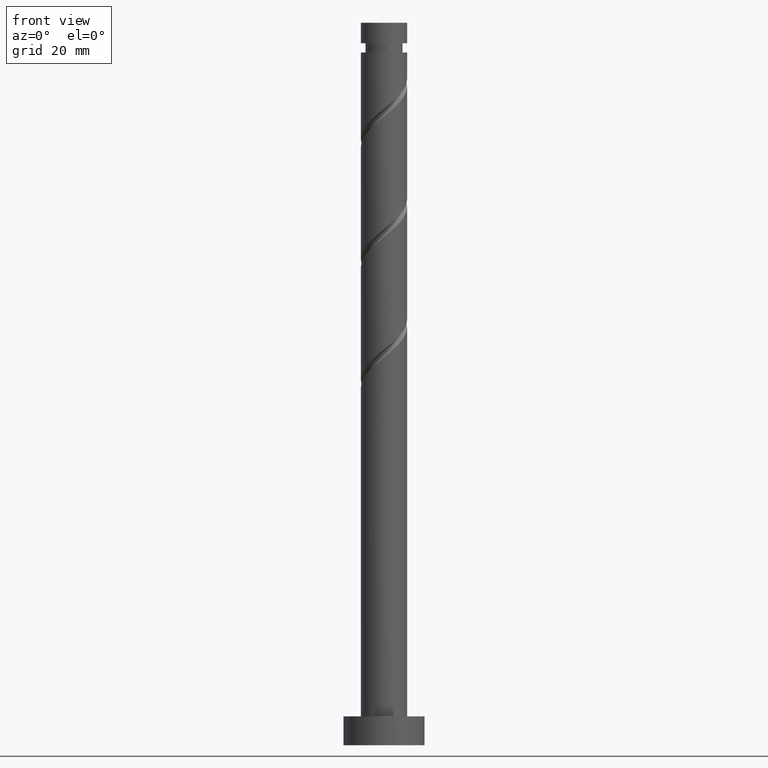
[diagram: clean part render]
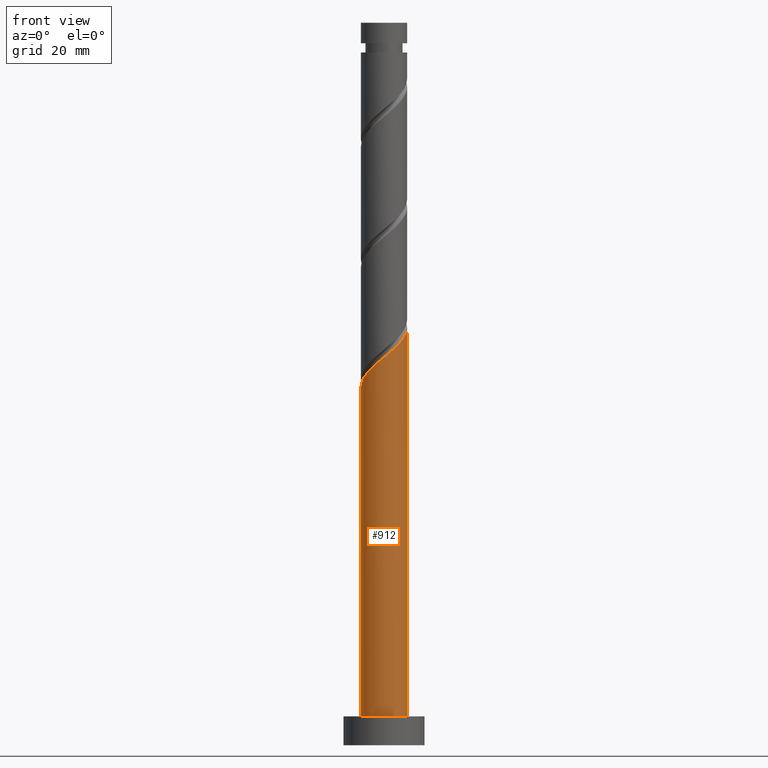
[diagram: same view with one face highlighted and labeled with its STEP entity id]
A machine part, front view. The second image highlights one B-rep face of the part: STEP entity #912.
In plain terms, the highlighted cylindrical surface (edge-blend (fillet) strip) has radius 4 mm, axis along (-0, -0, -1).
Its self-contained STEP definition (entity closure, byte-faithful):
#39 = EDGE_CURVE ( 'NONE', #593, #1418, #1449, .T. ) ;
#51 = VERTEX_POINT ( 'NONE', #223 ) ;
#53 = ORIENTED_EDGE ( 'NONE', *, *, #80, .T. ) ;
#65 = CARTESIAN_POINT ( 'NONE',  ( -2.236544262273469474, -3.376276034017707595, 65.15939096344953896 ) ) ;
#79 = CARTESIAN_POINT ( 'NONE',  ( -3.920000000000007034, -0.7959899496852957945, 62.55522429678288177 ) ) ;
#80 = EDGE_CURVE ( 'NONE', #51, #593, #476, .T. ) ;
#83 = DIRECTION ( 'NONE',  ( -0.000000000000000000, -0.000000000000000000, -1.000000000000000000 ) ) ;
#94 = CARTESIAN_POINT ( 'NONE',  ( 4.000000000000000000, 4.898587196589412829E-16, 5.000000000000000000 ) ) ;
#97 = CARTESIAN_POINT ( 'NONE',  ( 0.000000000000000000, 0.000000000000000000, 5.000000000000000000 ) ) ;
#111 = CARTESIAN_POINT ( 'NONE',  ( 0.7959899496852953504, -3.920000000000007034, 67.76355763011622457 ) ) ;
#136 = FACE_OUTER_BOUND ( 'NONE', #1144, .T. ) ;
#179 = CARTESIAN_POINT ( 'NONE',  ( -3.482167122072591603, -1.968378046503447498, 63.59689096344956027 ) ) ;
#186 = CARTESIAN_POINT ( 'NONE',  ( -3.170406666830039466, -2.519899137249416388, 64.11772429678289598 ) ) ;
#204 = CARTESIAN_POINT ( 'NONE',  ( 3.376276034017707595, -2.236544262273469919, 70.36772429678286755 ) ) ;
#217 = ORIENTED_EDGE ( 'NONE', *, *, #741, .F. ) ;
#223 = CARTESIAN_POINT ( 'NONE',  ( -4.000000000000005329, -2.998620556641140804E-15, 61.89042185531262419 ) ) ;
#237 = CARTESIAN_POINT ( 'NONE',  ( 2.519899137249415944, -3.170406666830039466, 69.32605763011621036 ) ) ;
#239 = CARTESIAN_POINT ( 'NONE',  ( -4.000000000000000000, 0.000000000000000000, 125.0000000000000000 ) ) ;
#257 = CARTESIAN_POINT ( 'NONE',  ( 0.000000000000000000, 0.000000000000000000, 125.0000000000000000 ) ) ;
#289 = CARTESIAN_POINT ( 'NONE',  ( -4.000000000000000000, 0.000000000000000000, 5.000000000000000000 ) ) ;
#329 = CARTESIAN_POINT ( 'NONE',  ( 3.639217771347842412, -1.660148792339435131, 70.88855763011621036 ) ) ;
#448 = CARTESIAN_POINT ( 'NONE',  ( 4.000000000000005329, 2.398896445312912959E-15, 72.30708852197928138 ) ) ;
#465 = CARTESIAN_POINT ( 'NONE',  ( 4.000000000000005329, -0.2278949497857316042, 72.11757743277199495 ) ) ;
#476 = LINE ( 'NONE', #239, #1481 ) ;
#579 = CARTESIAN_POINT ( 'NONE',  ( 1.416856955757478831, -3.793927577315144628, 68.28439096344955317 ) ) ;
#589 = CARTESIAN_POINT ( 'NONE',  ( 1.968378046503447498, -3.482167122072591603, 68.80522429678286755 ) ) ;
#593 = VERTEX_POINT ( 'NONE', #289 ) ;
#597 = CARTESIAN_POINT ( 'NONE',  ( 4.000000000000005329, 2.398896445312912959E-15, 72.30708852197928138 ) ) ;
#625 = DIRECTION ( 'NONE',  ( -0.000000000000000000, -0.000000000000000000, -1.000000000000000000 ) ) ;
#675 = CARTESIAN_POINT ( 'NONE',  ( -2.703475464551753582, -2.948087585633561325, 64.63855763011622457 ) ) ;
#731 = DIRECTION ( 'NONE',  ( -0.000000000000000000, -0.000000000000000000, -1.000000000000000000 ) ) ;
#741 = EDGE_CURVE ( 'NONE', #51, #749, #1085, .T. ) ;
#749 = VERTEX_POINT ( 'NONE', #448 ) ;
#782 = CARTESIAN_POINT ( 'NONE',  ( -3.793927577315144628, -1.416856955757479053, 63.07605763011623168 ) ) ;
#789 = CARTESIAN_POINT ( 'NONE',  ( -4.000000000000005329, -2.998620556641140804E-15, 61.89042185531262419 ) ) ;
#794 = CARTESIAN_POINT ( 'NONE',  ( -1.660148792339435131, -3.639217771347842412, 65.68022429678288177 ) ) ;
#840 = CARTESIAN_POINT ( 'NONE',  ( -0.4543151893961439591, -3.974115965681423113, 66.72189096344955317 ) ) ;
#898 = VECTOR ( 'NONE', #83, 1000.000000000000000 ) ;
#912 = ADVANCED_FACE ( 'NONE', ( #136 ), #1211, .T. ) ;
#922 = DIRECTION ( 'NONE',  ( 0.000000000000000000, 0.000000000000000000, 1.000000000000000000 ) ) ;
#1054 = DIRECTION ( 'NONE',  ( 1.000000000000000000, 0.000000000000000000, 0.000000000000000000 ) ) ;
#1065 = AXIS2_PLACEMENT_3D ( 'NONE', #97, #922, #1054 ) ;
#1085 =( BOUNDED_CURVE ( )  B_SPLINE_CURVE ( 2, ( #789, #1259, #79, #782, #179, #186, #675, #65, #794, #1266, #840, #1160, #111, #579, #589, #237, #1537, #204, #329, #1545, #1406, #465, #597 ),
 .UNSPECIFIED., .F., .T. ) 
 B_SPLINE_CURVE_WITH_KNOTS ( ( 3, 2, 2, 2, 2, 2, 2, 2, 2, 2, 2, 3 ),
 ( 0.05453220231385522837, 0.06250000000000000000, 0.07499999999999995559, 0.08750000000000002220, 0.09999999999999997780, 0.1125000000000000444, 0.1250000000000000000, 0.1374999999999999556, 0.1500000000000000222, 0.1624999999999999778, 0.1750000000000000444, 0.1795322023138552492 ),
 .UNSPECIFIED. ) 
 CURVE ( )  GEOMETRIC_REPRESENTATION_ITEM ( )  RATIONAL_B_SPLINE_CURVE ( ( 0.9039174447099413978, 0.9019565955404706958, 0.9090909090909189416, 0.8978984914501350056, 0.9090909090909189416, 0.8978984914501350056, 0.9090909090909189416, 0.8978984914501350056, 0.9090909090909189416, 0.8978984914501350056, 0.9090909090909189416, 0.8978984914501350056, 0.9090909090909189416, 0.8978984914501350056, 0.9090909090909189416, 0.8978984914501350056, 0.9090909090909189416, 0.8978984914501350056, 0.9090909090909189416, 0.8978984914501350056, 0.9090909090909189416, 0.9050328050005832514, 0.9039174447099410648 ) ) 
 REPRESENTATION_ITEM ( '' )  );
#1095 = DIRECTION ( 'NONE',  ( -1.000000000000000000, 0.000000000000000000, 0.000000000000000000 ) ) ;
#1144 = EDGE_LOOP ( 'NONE', ( #1381, #217, #53, #1488 ) ) ;
#1160 = CARTESIAN_POINT ( 'NONE',  ( 0.1751229436131121475, -4.046072422684866332, 67.24272429678286755 ) ) ;
#1211 = CYLINDRICAL_SURFACE ( 'NONE', #1346, 4.000000000000000000 ) ;
#1259 = CARTESIAN_POINT ( 'NONE',  ( -4.000000000000005329, -0.4020151261036851720, 62.22472643072046594 ) ) ;
#1266 = CARTESIAN_POINT ( 'NONE',  ( -1.083753322405400121, -3.902159508677978561, 66.20105763011621036 ) ) ;
#1346 = AXIS2_PLACEMENT_3D ( 'NONE', #257, #625, #1095 ) ;
#1381 = ORIENTED_EDGE ( 'NONE', *, *, #1466, .F. ) ;
#1396 = LINE ( 'NONE', #1403, #898 ) ;
#1403 = CARTESIAN_POINT ( 'NONE',  ( 4.000000000000000000, 4.898587196589412829E-16, 125.0000000000000000 ) ) ;
#1406 = CARTESIAN_POINT ( 'NONE',  ( 3.974115965681423113, -0.4543151893961441812, 71.93022429678288177 ) ) ;
#1418 = VERTEX_POINT ( 'NONE', #94 ) ;
#1449 = CIRCLE ( 'NONE', #1065, 4.000000000000000000 ) ;
#1466 = EDGE_CURVE ( 'NONE', #749, #1418, #1396, .T. ) ;
#1481 = VECTOR ( 'NONE', #731, 1000.000000000000000 ) ;
#1488 = ORIENTED_EDGE ( 'NONE', *, *, #39, .T. ) ;
#1537 = CARTESIAN_POINT ( 'NONE',  ( 2.948087585633561325, -2.703475464551753582, 69.84689096344955317 ) ) ;
#1545 = CARTESIAN_POINT ( 'NONE',  ( 3.902159508677978561, -1.083753322405400343, 71.40939096344955317 ) ) ;